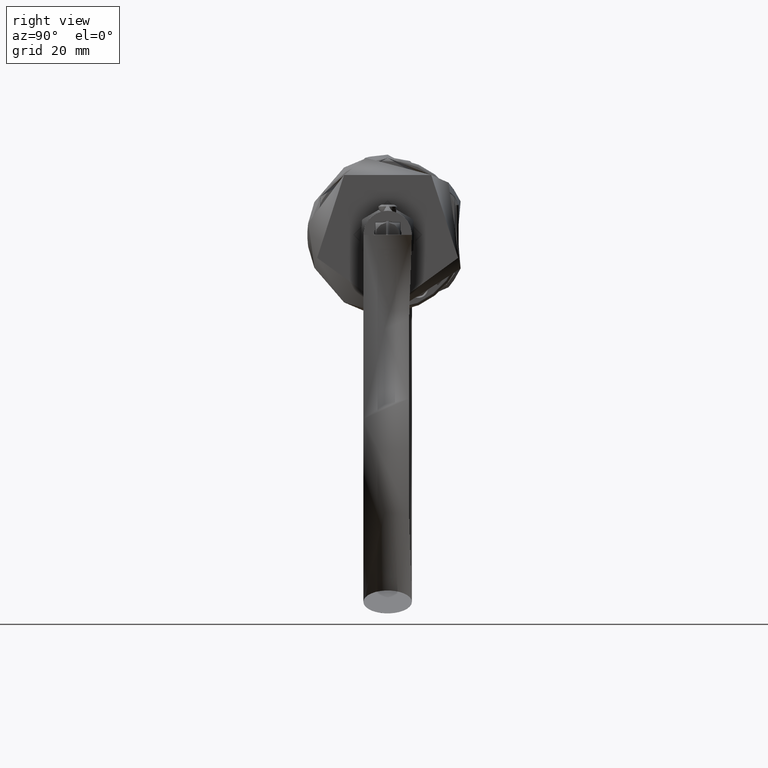
[diagram: clean part render]
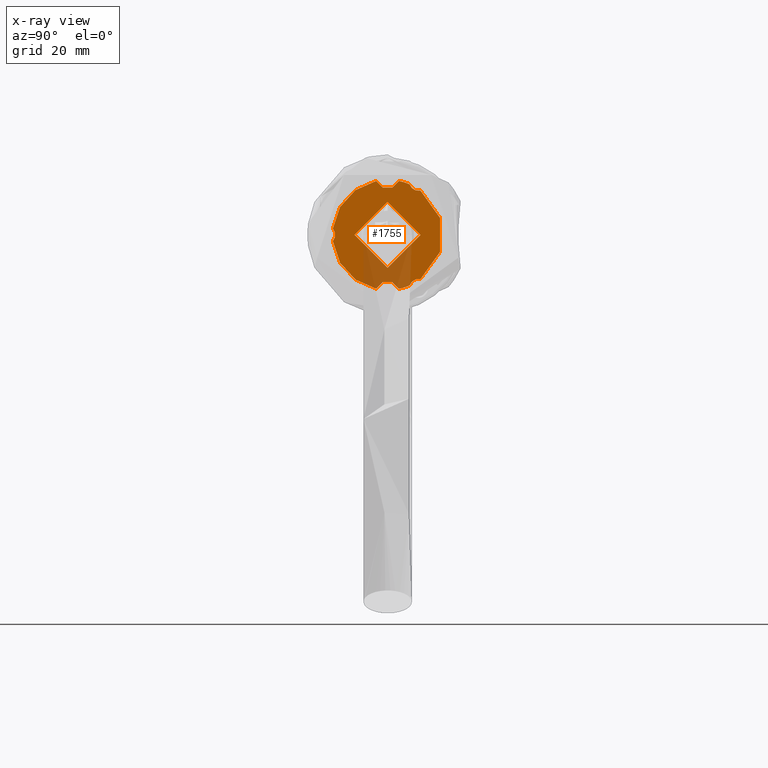
[diagram: x-ray — body ghosted, one internal face saturated and labeled with its STEP entity id]
A machine part, right view, then the same camera in x-ray: the body is ghosted and one INTERNAL B-rep face — a face not visible from any outside direction — is saturated and labeled: STEP entity #1755.
In plain terms, the highlighted planar face has unit normal (1, -0, 0).
Its self-contained STEP definition (entity closure, byte-faithful):
#72 = CARTESIAN_POINT ( 'NONE',  ( -18.99999999999999600, 0.0000000000000000000, 9.200000000000001100 ) ) ;
#1228 = CARTESIAN_POINT ( 'NONE',  ( 18.99999999999999600, 0.0000000000000000000, 9.200000000000001100 ) ) ;
#1266 = ORIENTED_EDGE ( 'NONE', *, *, #7157, .T. ) ;
#1755 = ADVANCED_FACE ( 'NONE', ( #11704, #21429 ), #5954, .T. ) ;
#2040 = DIRECTION ( 'NONE',  ( 1.000000000000000000, 0.0000000000000000000, -0.0000000000000000000 ) ) ;
#2044 = CIRCLE ( 'NONE', #24671, 3.050000000000000700 ) ;
#2146 = DIRECTION ( 'NONE',  ( -0.0000000000000000000, -0.0000000000000000000, -1.000000000000000000 ) ) ;
#2187 = DIRECTION ( 'NONE',  ( 1.000000000000000000, 0.0000000000000000000, 0.0000000000000000000 ) ) ;
#2792 = CARTESIAN_POINT ( 'NONE',  ( 14.33703107794160100, 10.63353374331114600, 9.200000000000001100 ) ) ;
#2819 = AXIS2_PLACEMENT_3D ( 'NONE', #5708, #17517, #2040 ) ;
#3265 = AXIS2_PLACEMENT_3D ( 'NONE', #18804, #24580, #7162 ) ;
#3599 = CARTESIAN_POINT ( 'NONE',  ( 17.46375000000000100, 3.693228389566509700, 9.200000000000001100 ) ) ;
#3648 = CIRCLE ( 'NONE', #21459, 4.000000000000000000 ) ;
#3750 = CIRCLE ( 'NONE', #10146, 10.69999999999999900 ) ;
#3954 = EDGE_CURVE ( 'NONE', #15595, #15595, #3750, .T. ) ;
#4161 = CARTESIAN_POINT ( 'NONE',  ( 10.69999999999999900, 0.0000000000000000000, 9.200000000000001100 ) ) ;
#4491 = CARTESIAN_POINT ( 'NONE',  ( 17.46375000000000100, -3.693228389566504800, 9.200000000000001100 ) ) ;
#4523 = CIRCLE ( 'NONE', #3265, 17.85000000000000100 ) ;
#4628 = DIRECTION ( 'NONE',  ( 1.000000000000000000, 0.0000000000000000000, 0.0000000000000000000 ) ) ;
#5025 = ORIENTED_EDGE ( 'NONE', *, *, #17915, .T. ) ;
#5294 = VERTEX_POINT ( 'NONE', #15235 ) ;
#5296 = VERTEX_POINT ( 'NONE', #3599 ) ;
#5343 = VERTEX_POINT ( 'NONE', #20946 ) ;
#5708 = CARTESIAN_POINT ( 'NONE',  ( 0.0000000000000000000, 0.0000000000000000000, 9.200000000000001100 ) ) ;
#5954 = PLANE ( 'NONE',  #2819 ) ;
#5972 = CARTESIAN_POINT ( 'NONE',  ( 0.0000000000000000000, 0.0000000000000000000, 9.200000000000001100 ) ) ;
#6222 = DIRECTION ( 'NONE',  ( 1.000000000000000000, 0.0000000000000000000, 0.0000000000000000000 ) ) ;
#6419 = CARTESIAN_POINT ( 'NONE',  ( 0.0000000000000000000, -20.00000000000000000, 9.200000000000001100 ) ) ;
#6583 = EDGE_LOOP ( 'NONE', ( #18424 ) ) ;
#7157 = EDGE_CURVE ( 'NONE', #20650, #18926, #14637, .T. ) ;
#7162 = DIRECTION ( 'NONE',  ( 1.000000000000000000, 0.0000000000000000000, 0.0000000000000000000 ) ) ;
#7172 = VERTEX_POINT ( 'NONE', #21369 ) ;
#7794 = CARTESIAN_POINT ( 'NONE',  ( 2.040394814735639900, -17.73299999999999700, 9.200000000000001100 ) ) ;
#8000 = DIRECTION ( 'NONE',  ( 0.0000000000000000000, 0.0000000000000000000, 1.000000000000000000 ) ) ;
#8278 = DIRECTION ( 'NONE',  ( -0.0000000000000000000, -0.0000000000000000000, -1.000000000000000000 ) ) ;
#8608 = DIRECTION ( 'NONE',  ( 0.0000000000000000000, 0.0000000000000000000, 1.000000000000000000 ) ) ;
#8658 = DIRECTION ( 'NONE',  ( 0.0000000000000000000, 0.0000000000000000000, 1.000000000000000000 ) ) ;
#9027 = EDGE_CURVE ( 'NONE', #5294, #5343, #18863, .T. ) ;
#9240 = EDGE_CURVE ( 'NONE', #5296, #18926, #3648, .T. ) ;
#9918 = CIRCLE ( 'NONE', #20045, 17.85000000000000100 ) ;
#9922 = ORIENTED_EDGE ( 'NONE', *, *, #10564, .T. ) ;
#10061 = CARTESIAN_POINT ( 'NONE',  ( -17.32050807568886700, 9.999999999999838400, 9.200000000000001100 ) ) ;
#10146 = AXIS2_PLACEMENT_3D ( 'NONE', #18691, #8658, #12583 ) ;
#10152 = ORIENTED_EDGE ( 'NONE', *, *, #17022, .T. ) ;
#10217 = CARTESIAN_POINT ( 'NONE',  ( 0.0000000000000000000, 0.0000000000000000000, 9.200000000000001100 ) ) ;
#10564 = EDGE_CURVE ( 'NONE', #20506, #12988, #13430, .T. ) ;
#11152 = CIRCLE ( 'NONE', #24774, 3.050000000000000700 ) ;
#11514 = CARTESIAN_POINT ( 'NONE',  ( 0.0000000000000000000, 0.0000000000000000000, 9.200000000000001100 ) ) ;
#11631 = ORIENTED_EDGE ( 'NONE', *, *, #14565, .T. ) ;
#11691 = CARTESIAN_POINT ( 'NONE',  ( -16.37742589267733700, 7.099466256688739200, 9.200000000000001100 ) ) ;
#11704 = FACE_OUTER_BOUND ( 'NONE', #14124, .T. ) ;
#12150 = ORIENTED_EDGE ( 'NONE', *, *, #18169, .T. ) ;
#12289 = VERTEX_POINT ( 'NONE', #23947 ) ;
#12583 = DIRECTION ( 'NONE',  ( 1.000000000000000000, 0.0000000000000000000, 0.0000000000000000000 ) ) ;
#12602 = CIRCLE ( 'NONE', #13709, 17.85000000000000100 ) ;
#12988 = VERTEX_POINT ( 'NONE', #11691 ) ;
#13390 = DIRECTION ( 'NONE',  ( 0.0000000000000000000, 0.0000000000000000000, 1.000000000000000000 ) ) ;
#13430 = CIRCLE ( 'NONE', #21646, 3.050000000000000700 ) ;
#13496 = ORIENTED_EDGE ( 'NONE', *, *, #9240, .F. ) ;
#13709 = AXIS2_PLACEMENT_3D ( 'NONE', #5972, #8000, #6222 ) ;
#14124 = EDGE_LOOP ( 'NONE', ( #12150, #9922, #11631, #15200, #14186, #10152, #1266, #13496, #16659, #5025 ) ) ;
#14186 = ORIENTED_EDGE ( 'NONE', *, *, #20508, .T. ) ;
#14565 = EDGE_CURVE ( 'NONE', #12988, #5343, #4523, .T. ) ;
#14637 = CIRCLE ( 'NONE', #15573, 17.85000000000000100 ) ;
#15089 = DIRECTION ( 'NONE',  ( 1.000000000000000000, 0.0000000000000000000, 0.0000000000000000000 ) ) ;
#15200 = ORIENTED_EDGE ( 'NONE', *, *, #9027, .F. ) ;
#15235 = CARTESIAN_POINT ( 'NONE',  ( -17.46375000000000100, -3.693228389566511400, 9.200000000000001100 ) ) ;
#15389 = VERTEX_POINT ( 'NONE', #2792 ) ;
#15573 = AXIS2_PLACEMENT_3D ( 'NONE', #11514, #13390, #17457 ) ;
#15595 = VERTEX_POINT ( 'NONE', #4161 ) ;
#16659 = ORIENTED_EDGE ( 'NONE', *, *, #23434, .T. ) ;
#16792 = DIRECTION ( 'NONE',  ( 0.0000000000000000000, 0.0000000000000000000, 1.000000000000000000 ) ) ;
#17022 = EDGE_CURVE ( 'NONE', #7172, #20650, #2044, .T. ) ;
#17408 = CARTESIAN_POINT ( 'NONE',  ( 0.0000000000000000000, 0.0000000000000000000, 9.200000000000001100 ) ) ;
#17457 = DIRECTION ( 'NONE',  ( 1.000000000000000000, 0.0000000000000000000, 0.0000000000000000000 ) ) ;
#17517 = DIRECTION ( 'NONE',  ( 0.0000000000000000000, 0.0000000000000000000, 1.000000000000000000 ) ) ;
#17915 = EDGE_CURVE ( 'NONE', #12289, #15389, #11152, .T. ) ;
#18169 = EDGE_CURVE ( 'NONE', #15389, #20506, #20923, .T. ) ;
#18424 = ORIENTED_EDGE ( 'NONE', *, *, #3954, .F. ) ;
#18691 = CARTESIAN_POINT ( 'NONE',  ( 0.0000000000000000000, 0.0000000000000000000, 9.200000000000001100 ) ) ;
#18804 = CARTESIAN_POINT ( 'NONE',  ( 0.0000000000000000000, 0.0000000000000000000, 9.200000000000001100 ) ) ;
#18863 = CIRCLE ( 'NONE', #20985, 4.000000000000000000 ) ;
#18926 = VERTEX_POINT ( 'NONE', #4491 ) ;
#18934 = AXIS2_PLACEMENT_3D ( 'NONE', #10217, #8608, #4628 ) ;
#19318 = CARTESIAN_POINT ( 'NONE',  ( 17.32050807568873200, 10.00000000000008200, 9.200000000000001100 ) ) ;
#19494 = DIRECTION ( 'NONE',  ( 1.000000000000000000, 0.0000000000000000000, 0.0000000000000000000 ) ) ;
#20009 = DIRECTION ( 'NONE',  ( 1.000000000000000000, 2.275047181608926700E-015, 0.0000000000000000000 ) ) ;
#20045 = AXIS2_PLACEMENT_3D ( 'NONE', #17408, #21491, #2187 ) ;
#20506 = VERTEX_POINT ( 'NONE', #21244 ) ;
#20508 = EDGE_CURVE ( 'NONE', #5294, #7172, #9918, .T. ) ;
#20650 = VERTEX_POINT ( 'NONE', #7794 ) ;
#20923 = CIRCLE ( 'NONE', #18934, 17.85000000000000100 ) ;
#20946 = CARTESIAN_POINT ( 'NONE',  ( -17.46375000000000100, 3.693228389566504800, 9.200000000000001100 ) ) ;
#20985 = AXIS2_PLACEMENT_3D ( 'NONE', #72, #23449, #23532 ) ;
#21244 = CARTESIAN_POINT ( 'NONE',  ( -14.33703107794172900, 10.63353374331097400, 9.200000000000001100 ) ) ;
#21369 = CARTESIAN_POINT ( 'NONE',  ( -2.040394814735639900, -17.73299999999999700, 9.200000000000001100 ) ) ;
#21429 = FACE_BOUND ( 'NONE', #6583, .T. ) ;
#21459 = AXIS2_PLACEMENT_3D ( 'NONE', #1228, #16792, #15089 ) ;
#21491 = DIRECTION ( 'NONE',  ( 0.0000000000000000000, 0.0000000000000000000, 1.000000000000000000 ) ) ;
#21646 = AXIS2_PLACEMENT_3D ( 'NONE', #10061, #8278, #21959 ) ;
#21959 = DIRECTION ( 'NONE',  ( 1.000000000000000000, 0.0000000000000000000, 0.0000000000000000000 ) ) ;
#21969 = DIRECTION ( 'NONE',  ( -0.0000000000000000000, -0.0000000000000000000, -1.000000000000000000 ) ) ;
#23434 = EDGE_CURVE ( 'NONE', #5296, #12289, #12602, .T. ) ;
#23449 = DIRECTION ( 'NONE',  ( 0.0000000000000000000, 0.0000000000000000000, 1.000000000000000000 ) ) ;
#23532 = DIRECTION ( 'NONE',  ( 1.000000000000000000, 0.0000000000000000000, 0.0000000000000000000 ) ) ;
#23947 = CARTESIAN_POINT ( 'NONE',  ( 16.37742589267722000, 7.099466256689003900, 9.200000000000001100 ) ) ;
#24580 = DIRECTION ( 'NONE',  ( 0.0000000000000000000, 0.0000000000000000000, 1.000000000000000000 ) ) ;
#24671 = AXIS2_PLACEMENT_3D ( 'NONE', #6419, #21969, #20009 ) ;
#24774 = AXIS2_PLACEMENT_3D ( 'NONE', #19318, #2146, #19494 ) ;